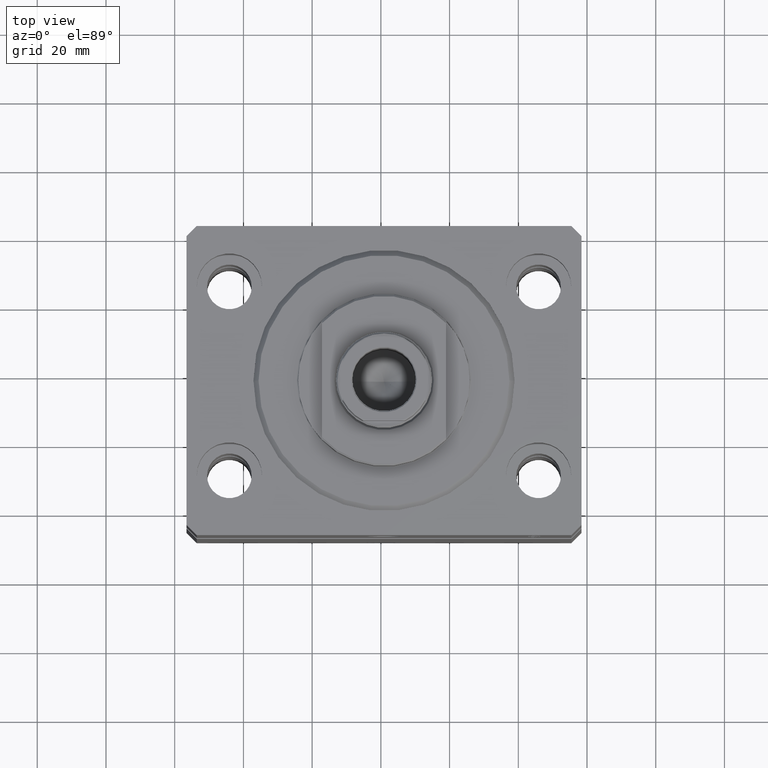
[diagram: clean part render]
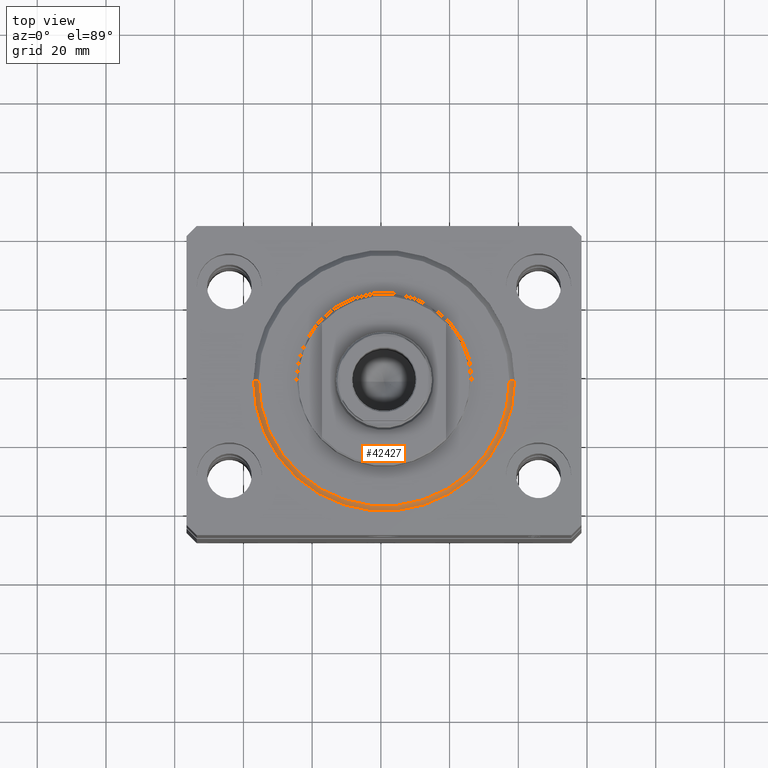
[diagram: same view with one face highlighted and labeled with its STEP entity id]
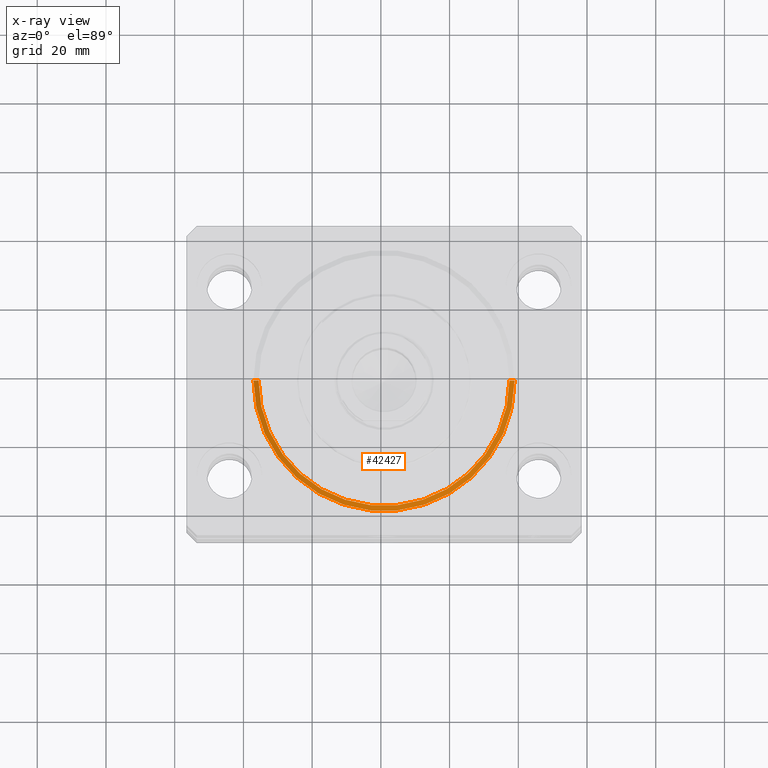
[diagram: x-ray of the same camera — body ghosted, the highlighted face saturated]
A machine part, top view. The second image highlights one B-rep face of the part: STEP entity #42427.
The next image is the same camera in x-ray: the body ghosted, the highlighted face saturated — about 0% of this face is hidden behind the body in this view.
In plain terms, the highlighted conical surface has half-angle 45 deg.
Its self-contained STEP definition (entity closure, byte-faithful):
#896 = LINE ( 'NONE', #15054, #41400 ) ;
#4827 = VERTEX_POINT ( 'NONE', #9814 ) ;
#6087 = EDGE_CURVE ( 'NONE', #41330, #33776, #43847, .T. ) ;
#7262 = FACE_OUTER_BOUND ( 'NONE', #39085, .T. ) ;
#9814 = CARTESIAN_POINT ( 'NONE',  ( -36.50000000000000000, 4.561809326823889791E-15, 0.000000000000000000 ) ) ;
#10287 = DIRECTION ( 'NONE',  ( -0.000000000000000000, -0.000000000000000000, 1.000000000000000000 ) ) ;
#11103 = CARTESIAN_POINT ( 'NONE',  ( 38.00000000000000000, 4.653657836759941941E-15, 1.499999999999987566 ) ) ;
#11123 = DIRECTION ( 'NONE',  ( 0.7071067811865507924, 0.000000000000000000, 0.7071067811865441310 ) ) ;
#11882 = ORIENTED_EDGE ( 'NONE', *, *, #6087, .T. ) ;
#12025 = CARTESIAN_POINT ( 'NONE',  ( 38.00000000000000000, 0.000000000000000000, 1.499999999999987566 ) ) ;
#12636 = ORIENTED_EDGE ( 'NONE', *, *, #16839, .F. ) ;
#15054 = CARTESIAN_POINT ( 'NONE',  ( -38.00000000000000000, 4.653657836759941152E-15, 1.499999999999987566 ) ) ;
#15668 = VECTOR ( 'NONE', #11123, 1000.000000000000114 ) ;
#16839 = EDGE_CURVE ( 'NONE', #41330, #4827, #25620, .T. ) ;
#16913 = VERTEX_POINT ( 'NONE', #31112 ) ;
#20971 = CARTESIAN_POINT ( 'NONE',  ( 36.50000000000000000, 0.000000000000000000, 0.000000000000000000 ) ) ;
#21842 = ORIENTED_EDGE ( 'NONE', *, *, #34942, .F. ) ;
#24059 = CIRCLE ( 'NONE', #39623, 38.00000000000000000 ) ;
#25149 = CARTESIAN_POINT ( 'NONE',  ( 0.000000000000000000, 0.000000000000000000, 1.499999999999987566 ) ) ;
#25620 = CIRCLE ( 'NONE', #31551, 36.50000000000000000 ) ;
#28100 = DIRECTION ( 'NONE',  ( -0.000000000000000000, -0.000000000000000000, -1.000000000000000000 ) ) ;
#28632 = CONICAL_SURFACE ( 'NONE', #32345, 38.00000000000000000, 0.7853981633974529419 ) ;
#29165 = EDGE_CURVE ( 'NONE', #4827, #16913, #896, .T. ) ;
#31112 = CARTESIAN_POINT ( 'NONE',  ( -38.00000000000000000, 0.000000000000000000, 1.499999999999987566 ) ) ;
#31342 = DIRECTION ( 'NONE',  ( 1.000000000000000000, 0.000000000000000000, 0.000000000000000000 ) ) ;
#31423 = CARTESIAN_POINT ( 'NONE',  ( 0.000000000000000000, 0.000000000000000000, 1.499999999999987566 ) ) ;
#31551 = AXIS2_PLACEMENT_3D ( 'NONE', #45494, #28100, #31342 ) ;
#32345 = AXIS2_PLACEMENT_3D ( 'NONE', #25149, #39292, #43456 ) ;
#33776 = VERTEX_POINT ( 'NONE', #11103 ) ;
#34942 = EDGE_CURVE ( 'NONE', #16913, #33776, #24059, .T. ) ;
#39085 = EDGE_LOOP ( 'NONE', ( #45302, #12636, #11882, #21842 ) ) ;
#39218 = DIRECTION ( 'NONE',  ( -0.7071067811865507924, 8.659560562354972301E-17, 0.7071067811865441310 ) ) ;
#39292 = DIRECTION ( 'NONE',  ( -0.000000000000000000, -0.000000000000000000, 1.000000000000000000 ) ) ;
#39623 = AXIS2_PLACEMENT_3D ( 'NONE', #31423, #10287, #45574 ) ;
#41330 = VERTEX_POINT ( 'NONE', #20971 ) ;
#41400 = VECTOR ( 'NONE', #39218, 1000.000000000000114 ) ;
#42427 = ADVANCED_FACE ( 'NONE', ( #7262 ), #28632, .T. ) ;
#43456 = DIRECTION ( 'NONE',  ( 1.000000000000000000, 0.000000000000000000, 0.000000000000000000 ) ) ;
#43847 = LINE ( 'NONE', #12025, #15668 ) ;
#45302 = ORIENTED_EDGE ( 'NONE', *, *, #29165, .F. ) ;
#45494 = CARTESIAN_POINT ( 'NONE',  ( 0.000000000000000000, 0.000000000000000000, 0.000000000000000000 ) ) ;
#45574 = DIRECTION ( 'NONE',  ( 1.000000000000000000, 0.000000000000000000, 0.000000000000000000 ) ) ;